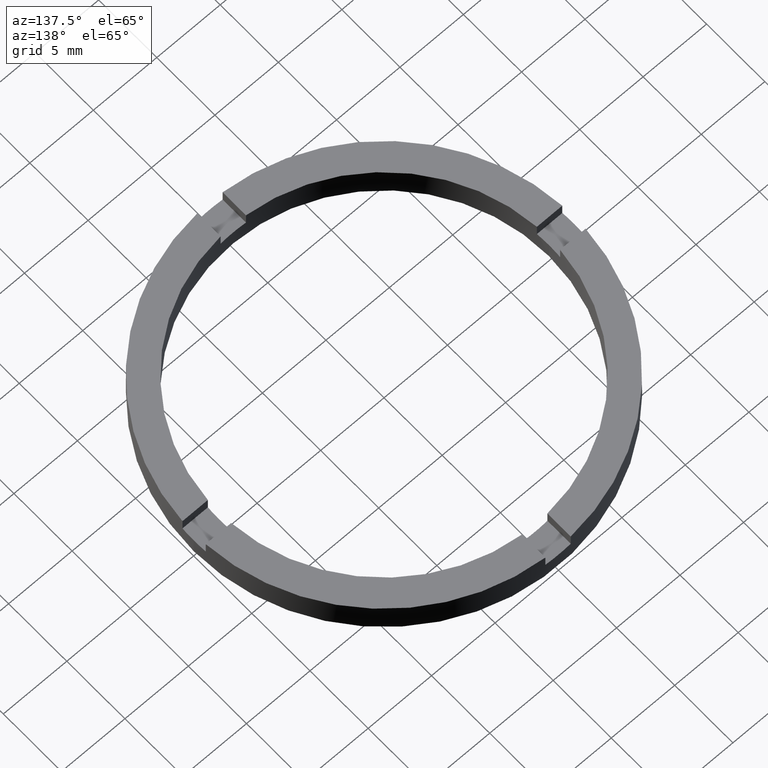
[diagram: clean part render]
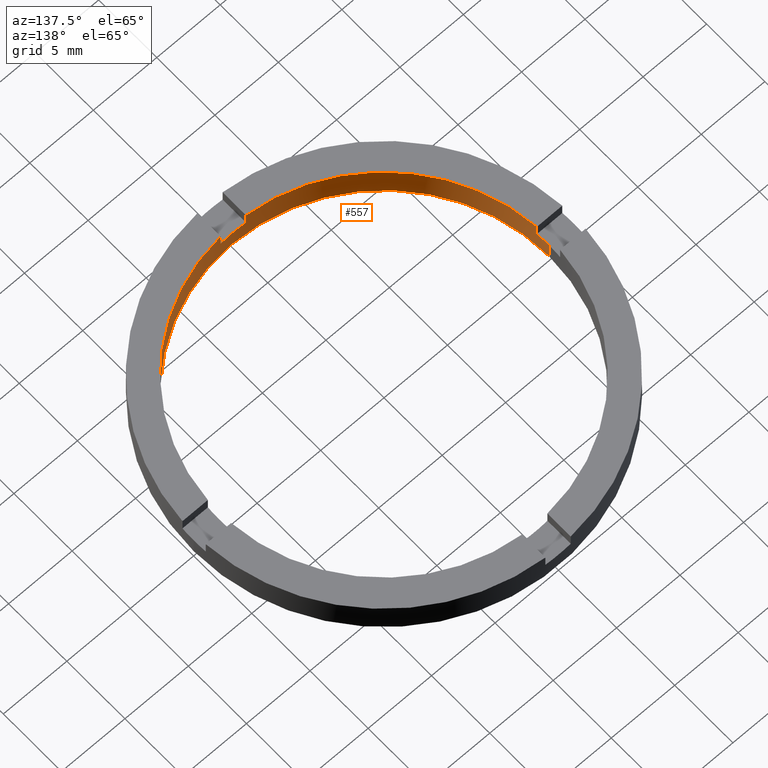
[diagram: same view with one face highlighted and labeled with its STEP entity id]
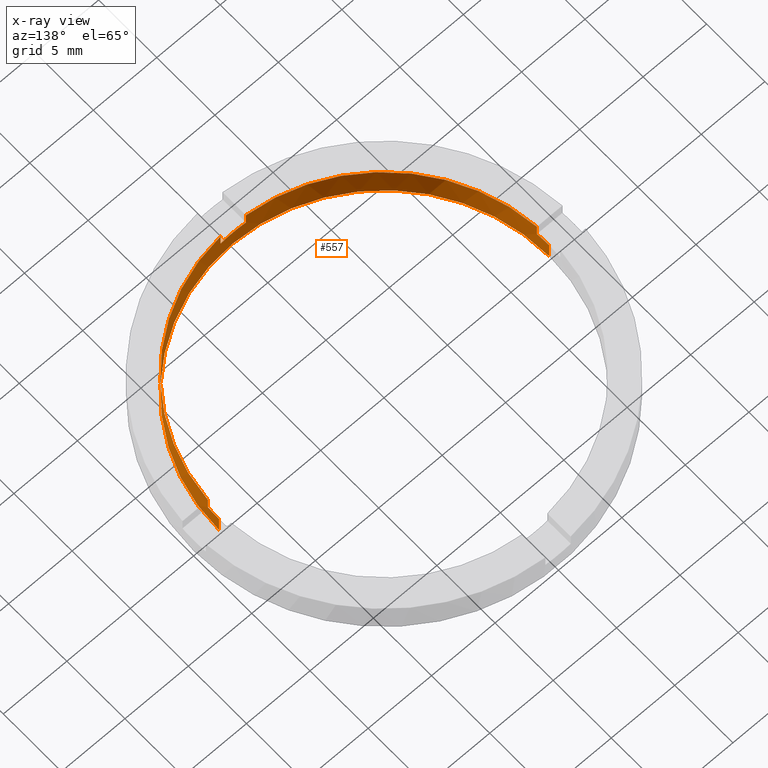
[diagram: x-ray of the same camera — body ghosted, the highlighted face saturated]
A machine part, auxiliary view. The second image highlights one B-rep face of the part: STEP entity #557.
The next image is the same camera in x-ray: the body ghosted, the highlighted face saturated — about 0% of this face is hidden behind the body in this view.
In plain terms, the highlighted cylindrical surface (partial cylindrical patch) has radius 13 mm, axis along (-0, -0, -1).
Its self-contained STEP definition (entity closure, byte-faithful):
#18 = CARTESIAN_POINT ( 'NONE',  ( -12.96148139681571898, -1.000000000000022649, 2.500000000000000000 ) ) ;
#28 = DIRECTION ( 'NONE',  ( 1.000000000000000000, 0.000000000000000000, 0.000000000000000000 ) ) ;
#63 = DIRECTION ( 'NONE',  ( 0.000000000000000000, 0.000000000000000000, 1.000000000000000000 ) ) ;
#76 = DIRECTION ( 'NONE',  ( -0.000000000000000000, 0.000000000000000000, 1.000000000000000000 ) ) ;
#82 = EDGE_CURVE ( 'NONE', #765, #432, #386, .T. ) ;
#90 = ORIENTED_EDGE ( 'NONE', *, *, #194, .F. ) ;
#92 = AXIS2_PLACEMENT_3D ( 'NONE', #452, #524, #247 ) ;
#112 = DIRECTION ( 'NONE',  ( -0.000000000000000000, -0.000000000000000000, -1.000000000000000000 ) ) ;
#113 = VERTEX_POINT ( 'NONE', #704 ) ;
#116 = VECTOR ( 'NONE', #311, 1000.000000000000000 ) ;
#120 = CARTESIAN_POINT ( 'NONE',  ( 0.9999999999998366862, -12.96148139681573497, 2.500000000000000000 ) ) ;
#143 = VERTEX_POINT ( 'NONE', #216 ) ;
#144 = AXIS2_PLACEMENT_3D ( 'NONE', #196, #745, #303 ) ;
#147 = LINE ( 'NONE', #18, #396 ) ;
#148 = ORIENTED_EDGE ( 'NONE', *, *, #248, .F. ) ;
#151 = ORIENTED_EDGE ( 'NONE', *, *, #563, .T. ) ;
#163 = VERTEX_POINT ( 'NONE', #480 ) ;
#173 = EDGE_CURVE ( 'NONE', #113, #636, #147, .T. ) ;
#174 = ORIENTED_EDGE ( 'NONE', *, *, #651, .T. ) ;
#177 = ORIENTED_EDGE ( 'NONE', *, *, #173, .F. ) ;
#178 = AXIS2_PLACEMENT_3D ( 'NONE', #387, #76, #279 ) ;
#184 = CIRCLE ( 'NONE', #92, 13.00000000000000178 ) ;
#188 = FACE_OUTER_BOUND ( 'NONE', #223, .T. ) ;
#194 = EDGE_CURVE ( 'NONE', #389, #610, #684, .T. ) ;
#196 = CARTESIAN_POINT ( 'NONE',  ( 0.000000000000000000, 0.000000000000000000, 2.500000000000000000 ) ) ;
#213 = VECTOR ( 'NONE', #112, 1000.000000000000000 ) ;
#216 = CARTESIAN_POINT ( 'NONE',  ( 12.96148139681570832, -1.000000000000159428, 2.500000000000000000 ) ) ;
#217 = DIRECTION ( 'NONE',  ( -0.000000000000000000, -0.000000000000000000, -1.000000000000000000 ) ) ;
#222 = ORIENTED_EDGE ( 'NONE', *, *, #602, .F. ) ;
#223 = EDGE_LOOP ( 'NONE', ( #708, #446, #660, #712, #151, #177, #417, #90, #437, #222, #174, #148 ) ) ;
#247 = DIRECTION ( 'NONE',  ( 1.000000000000000000, 0.000000000000000000, 0.000000000000000000 ) ) ;
#248 = EDGE_CURVE ( 'NONE', #163, #143, #707, .T. ) ;
#253 = CARTESIAN_POINT ( 'NONE',  ( 0.000000000000000000, 0.000000000000000000, 1.500000000000000000 ) ) ;
#257 = DIRECTION ( 'NONE',  ( 0.000000000000000000, 0.000000000000000000, 1.000000000000000000 ) ) ;
#260 = CARTESIAN_POINT ( 'NONE',  ( 13.00000000000000178, 1.592040838891559293E-15, 2.500000000000000000 ) ) ;
#268 = CARTESIAN_POINT ( 'NONE',  ( -13.00000000000000178, 0.000000000000000000, 0.000000000000000000 ) ) ;
#279 = DIRECTION ( 'NONE',  ( 1.000000000000000000, 0.000000000000000000, 0.000000000000000000 ) ) ;
#283 = AXIS2_PLACEMENT_3D ( 'NONE', #327, #63, #431 ) ;
#303 = DIRECTION ( 'NONE',  ( -1.000000000000000000, 0.000000000000000000, 0.000000000000000000 ) ) ;
#308 = EDGE_CURVE ( 'NONE', #427, #432, #466, .T. ) ;
#311 = DIRECTION ( 'NONE',  ( -0.000000000000000000, -0.000000000000000000, -1.000000000000000000 ) ) ;
#318 = CARTESIAN_POINT ( 'NONE',  ( 0.000000000000000000, 0.000000000000000000, 0.000000000000000000 ) ) ;
#320 = DIRECTION ( 'NONE',  ( 0.000000000000000000, 0.000000000000000000, 1.000000000000000000 ) ) ;
#322 = CARTESIAN_POINT ( 'NONE',  ( 12.96148139681570832, -1.000000000000159428, 2.500000000000000000 ) ) ;
#327 = CARTESIAN_POINT ( 'NONE',  ( 0.000000000000000000, 0.000000000000000000, 2.500000000000000000 ) ) ;
#342 = CARTESIAN_POINT ( 'NONE',  ( -1.000000000000163203, -12.96148139681570832, 2.500000000000000000 ) ) ;
#347 = VERTEX_POINT ( 'NONE', #451 ) ;
#352 = DIRECTION ( 'NONE',  ( 0.000000000000000000, 0.000000000000000000, 1.000000000000000000 ) ) ;
#361 = DIRECTION ( 'NONE',  ( -0.000000000000000000, -0.000000000000000000, -1.000000000000000000 ) ) ;
#379 = DIRECTION ( 'NONE',  ( 0.000000000000000000, 0.000000000000000000, 1.000000000000000000 ) ) ;
#382 = LINE ( 'NONE', #691, #116 ) ;
#383 = CIRCLE ( 'NONE', #444, 13.00000000000000178 ) ;
#385 = AXIS2_PLACEMENT_3D ( 'NONE', #318, #379, #481 ) ;
#386 = CIRCLE ( 'NONE', #385, 13.00000000000000178 ) ;
#387 = CARTESIAN_POINT ( 'NONE',  ( 0.000000000000000000, 0.000000000000000000, 1.500000000000000000 ) ) ;
#389 = VERTEX_POINT ( 'NONE', #491 ) ;
#390 = CIRCLE ( 'NONE', #283, 13.00000000000000178 ) ;
#396 = VECTOR ( 'NONE', #361, 1000.000000000000000 ) ;
#405 = CARTESIAN_POINT ( 'NONE',  ( 13.00000000000000178, 1.592040838891559293E-15, 1.500000000000000000 ) ) ;
#417 = ORIENTED_EDGE ( 'NONE', *, *, #574, .T. ) ;
#418 = VECTOR ( 'NONE', #352, 1000.000000000000000 ) ;
#424 = EDGE_CURVE ( 'NONE', #389, #506, #715, .T. ) ;
#427 = VERTEX_POINT ( 'NONE', #405 ) ;
#431 = DIRECTION ( 'NONE',  ( 1.000000000000000000, 0.000000000000000000, 0.000000000000000000 ) ) ;
#432 = VERTEX_POINT ( 'NONE', #486 ) ;
#437 = ORIENTED_EDGE ( 'NONE', *, *, #424, .T. ) ;
#444 = AXIS2_PLACEMENT_3D ( 'NONE', #253, #257, #740 ) ;
#446 = ORIENTED_EDGE ( 'NONE', *, *, #308, .T. ) ;
#451 = CARTESIAN_POINT ( 'NONE',  ( -13.00000000000000178, 0.000000000000000000, 1.500000000000000000 ) ) ;
#452 = CARTESIAN_POINT ( 'NONE',  ( 0.000000000000000000, 0.000000000000000000, 1.500000000000000000 ) ) ;
#466 = LINE ( 'NONE', #260, #470 ) ;
#470 = VECTOR ( 'NONE', #217, 1000.000000000000000 ) ;
#472 = VECTOR ( 'NONE', #320, 1000.000000000000000 ) ;
#475 = EDGE_CURVE ( 'NONE', #347, #765, #734, .T. ) ;
#480 = CARTESIAN_POINT ( 'NONE',  ( 12.96148139681570832, -1.000000000000159428, 1.500000000000000000 ) ) ;
#481 = DIRECTION ( 'NONE',  ( 1.000000000000000000, 0.000000000000000000, 0.000000000000000000 ) ) ;
#486 = CARTESIAN_POINT ( 'NONE',  ( 13.00000000000000178, 1.592040838891559293E-15, 0.000000000000000000 ) ) ;
#491 = CARTESIAN_POINT ( 'NONE',  ( -1.000000000000163203, -12.96148139681570832, 1.500000000000000000 ) ) ;
#506 = VERTEX_POINT ( 'NONE', #556 ) ;
#524 = DIRECTION ( 'NONE',  ( 0.000000000000000000, 0.000000000000000000, 1.000000000000000000 ) ) ;
#556 = CARTESIAN_POINT ( 'NONE',  ( 0.9999999999998366862, -12.96148139681573497, 1.500000000000000000 ) ) ;
#557 = ADVANCED_FACE ( 'NONE', ( #188 ), #702, .F. ) ;
#563 = EDGE_CURVE ( 'NONE', #347, #636, #184, .T. ) ;
#574 = EDGE_CURVE ( 'NONE', #113, #610, #697, .T. ) ;
#585 = CARTESIAN_POINT ( 'NONE',  ( -12.96148139681571898, -1.000000000000022649, 1.500000000000000000 ) ) ;
#602 = EDGE_CURVE ( 'NONE', #657, #506, #382, .T. ) ;
#610 = VERTEX_POINT ( 'NONE', #342 ) ;
#636 = VERTEX_POINT ( 'NONE', #585 ) ;
#651 = EDGE_CURVE ( 'NONE', #657, #143, #390, .T. ) ;
#657 = VERTEX_POINT ( 'NONE', #120 ) ;
#660 = ORIENTED_EDGE ( 'NONE', *, *, #82, .F. ) ;
#661 = CARTESIAN_POINT ( 'NONE',  ( 0.000000000000000000, 0.000000000000000000, 2.500000000000000000 ) ) ;
#682 = DIRECTION ( 'NONE',  ( 0.000000000000000000, 0.000000000000000000, 1.000000000000000000 ) ) ;
#684 = LINE ( 'NONE', #694, #418 ) ;
#691 = CARTESIAN_POINT ( 'NONE',  ( 0.9999999999998366862, -12.96148139681573497, 2.500000000000000000 ) ) ;
#694 = CARTESIAN_POINT ( 'NONE',  ( -1.000000000000163203, -12.96148139681570832, 2.500000000000000000 ) ) ;
#697 = CIRCLE ( 'NONE', #771, 13.00000000000000178 ) ;
#702 = CYLINDRICAL_SURFACE ( 'NONE', #144, 13.00000000000000178 ) ;
#704 = CARTESIAN_POINT ( 'NONE',  ( -12.96148139681571898, -1.000000000000022649, 2.500000000000000000 ) ) ;
#707 = LINE ( 'NONE', #322, #472 ) ;
#708 = ORIENTED_EDGE ( 'NONE', *, *, #724, .T. ) ;
#712 = ORIENTED_EDGE ( 'NONE', *, *, #475, .F. ) ;
#715 = CIRCLE ( 'NONE', #178, 13.00000000000000178 ) ;
#724 = EDGE_CURVE ( 'NONE', #163, #427, #383, .T. ) ;
#734 = LINE ( 'NONE', #736, #213 ) ;
#736 = CARTESIAN_POINT ( 'NONE',  ( -13.00000000000000178, 0.000000000000000000, 2.500000000000000000 ) ) ;
#740 = DIRECTION ( 'NONE',  ( 1.000000000000000000, 0.000000000000000000, 0.000000000000000000 ) ) ;
#745 = DIRECTION ( 'NONE',  ( -0.000000000000000000, -0.000000000000000000, -1.000000000000000000 ) ) ;
#765 = VERTEX_POINT ( 'NONE', #268 ) ;
#771 = AXIS2_PLACEMENT_3D ( 'NONE', #661, #682, #28 ) ;